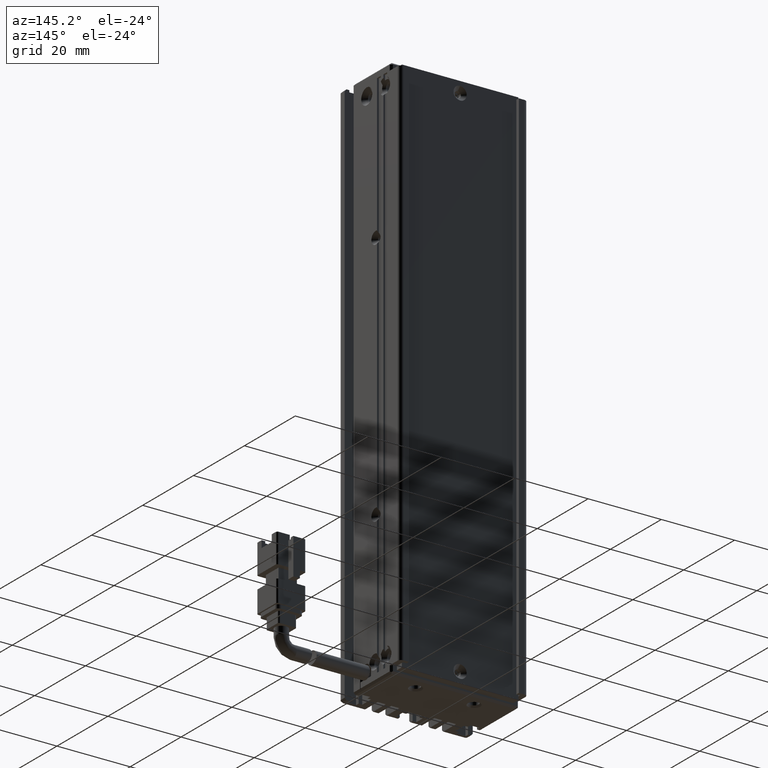
[diagram: clean part render]
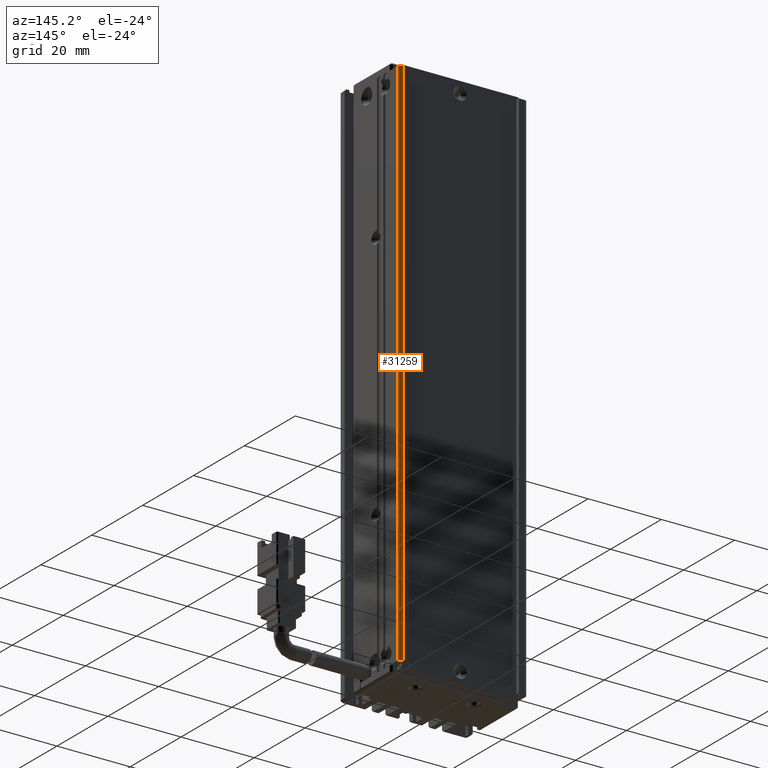
[diagram: same view with one face highlighted and labeled with its STEP entity id]
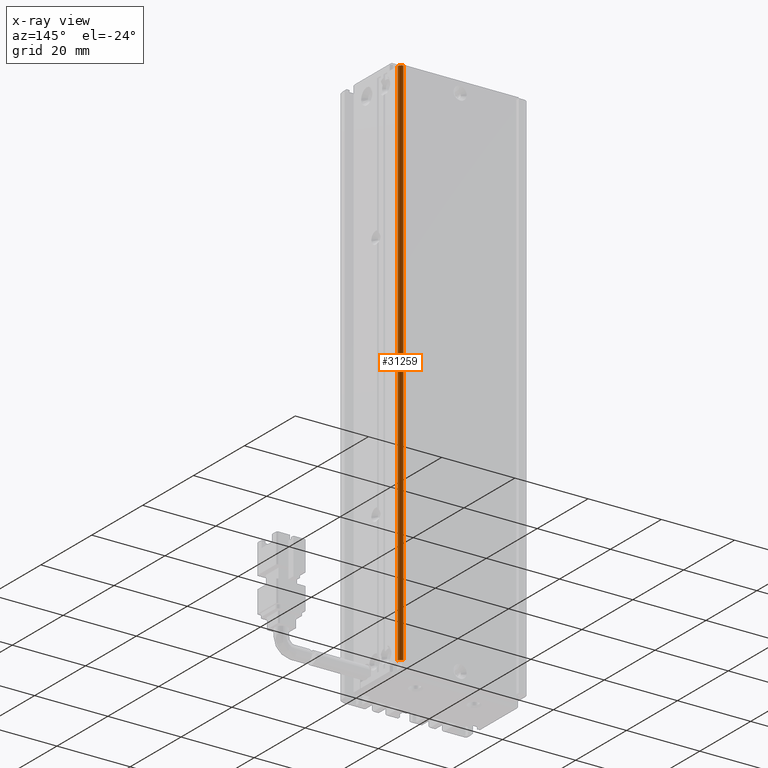
[diagram: x-ray of the same camera — body ghosted, the highlighted face saturated]
A machine part, auxiliary view. The second image highlights one B-rep face of the part: STEP entity #31259.
The next image is the same camera in x-ray: the body ghosted, the highlighted face saturated — about 0% of this face is hidden behind the body in this view.
In plain terms, the highlighted cylindrical surface (edge-blend (fillet) strip) has radius 1 mm, axis along (-0, -0, -1).
Its self-contained STEP definition (entity closure, byte-faithful):
#2817 = LINE ( 'NONE', #43767, #59192 ) ;
#4531 = VERTEX_POINT ( 'NONE', #27272 ) ;
#8257 = CARTESIAN_POINT ( 'NONE',  ( 58.42537974683542500, 33.99073232304837700, -40.00000000000000700 ) ) ;
#8503 = AXIS2_PLACEMENT_3D ( 'NONE', #32885, #27127, #39077 ) ;
#12939 = DIRECTION ( 'NONE',  ( 0.0000000000000000000, 0.0000000000000000000, 1.000000000000000000 ) ) ;
#17513 = VECTOR ( 'NONE', #68458, 1000.000000000000000 ) ;
#17875 = DIRECTION ( 'NONE',  ( -0.0000000000000000000, -0.0000000000000000000, -1.000000000000000000 ) ) ;
#17923 = DIRECTION ( 'NONE',  ( -0.0000000000000000000, -0.0000000000000000000, -1.000000000000000000 ) ) ;
#17949 = CARTESIAN_POINT ( 'NONE',  ( 58.42537974683542500, 33.99073232304837700, -42.00000000000000700 ) ) ;
#22575 = AXIS2_PLACEMENT_3D ( 'NONE', #29365, #17875, #34399 ) ;
#22874 = VERTEX_POINT ( 'NONE', #17949 ) ;
#23423 = CARTESIAN_POINT ( 'NONE',  ( 57.42537974683541800, 33.99073232304837700, -42.00000000000000700 ) ) ;
#23892 = CARTESIAN_POINT ( 'NONE',  ( 58.42537974683542500, 33.99073232304837700, -188.0000000000000000 ) ) ;
#27127 = DIRECTION ( 'NONE',  ( -0.0000000000000000000, -0.0000000000000000000, -1.000000000000000000 ) ) ;
#27272 = CARTESIAN_POINT ( 'NONE',  ( 57.42537974683541800, 34.99073232304837700, -188.0000000000000000 ) ) ;
#27758 = CARTESIAN_POINT ( 'NONE',  ( 57.42537974683541800, 34.99073232304837700, -42.00000000000000700 ) ) ;
#29365 = CARTESIAN_POINT ( 'NONE',  ( 57.42537974683541800, 33.99073232304837700, -40.00000000000000700 ) ) ;
#31259 = ADVANCED_FACE ( 'NONE', ( #39523 ), #53164, .T. ) ;
#32885 = CARTESIAN_POINT ( 'NONE',  ( 57.42537974683541800, 33.99073232304837700, -188.0000000000000000 ) ) ;
#33441 = ORIENTED_EDGE ( 'NONE', *, *, #42686, .T. ) ;
#34087 = ORIENTED_EDGE ( 'NONE', *, *, #70975, .F. ) ;
#34399 = DIRECTION ( 'NONE',  ( -1.000000000000000000, 0.0000000000000000000, 0.0000000000000000000 ) ) ;
#38165 = EDGE_CURVE ( 'NONE', #66953, #22874, #49733, .T. ) ;
#39077 = DIRECTION ( 'NONE',  ( -1.000000000000000000, 0.0000000000000000000, 0.0000000000000000000 ) ) ;
#39523 = FACE_OUTER_BOUND ( 'NONE', #47127, .T. ) ;
#42686 = EDGE_CURVE ( 'NONE', #4531, #66953, #2817, .T. ) ;
#43767 = CARTESIAN_POINT ( 'NONE',  ( 57.42537974683541100, 34.99073232304837700, -40.00000000000000700 ) ) ;
#47127 = EDGE_LOOP ( 'NONE', ( #63999, #34087, #33441, #56932 ) ) ;
#49733 = CIRCLE ( 'NONE', #50647, 1.000000000000000900 ) ;
#50647 = AXIS2_PLACEMENT_3D ( 'NONE', #23423, #17923, #61356 ) ;
#53164 = CYLINDRICAL_SURFACE ( 'NONE', #22575, 1.000000000000000900 ) ;
#54256 = LINE ( 'NONE', #8257, #17513 ) ;
#55527 = CIRCLE ( 'NONE', #8503, 1.000000000000000900 ) ;
#56932 = ORIENTED_EDGE ( 'NONE', *, *, #38165, .T. ) ;
#58440 = EDGE_CURVE ( 'NONE', #22874, #67089, #54256, .T. ) ;
#59192 = VECTOR ( 'NONE', #12939, 1000.000000000000000 ) ;
#61356 = DIRECTION ( 'NONE',  ( -1.000000000000000000, 0.0000000000000000000, 0.0000000000000000000 ) ) ;
#63999 = ORIENTED_EDGE ( 'NONE', *, *, #58440, .T. ) ;
#66953 = VERTEX_POINT ( 'NONE', #27758 ) ;
#67089 = VERTEX_POINT ( 'NONE', #23892 ) ;
#68458 = DIRECTION ( 'NONE',  ( -0.0000000000000000000, -0.0000000000000000000, -1.000000000000000000 ) ) ;
#70975 = EDGE_CURVE ( 'NONE', #4531, #67089, #55527, .T. ) ;